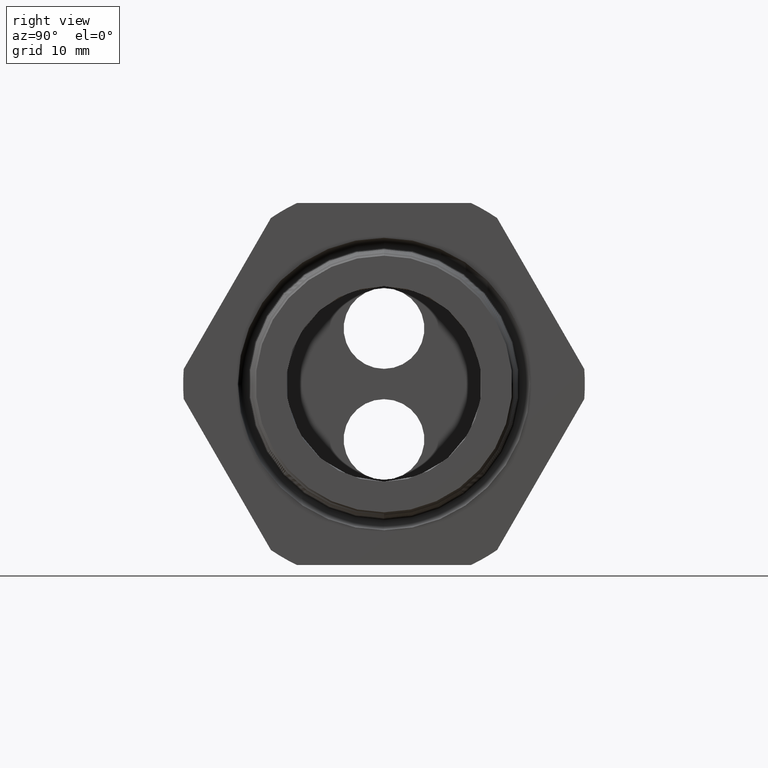
[diagram: clean part render]
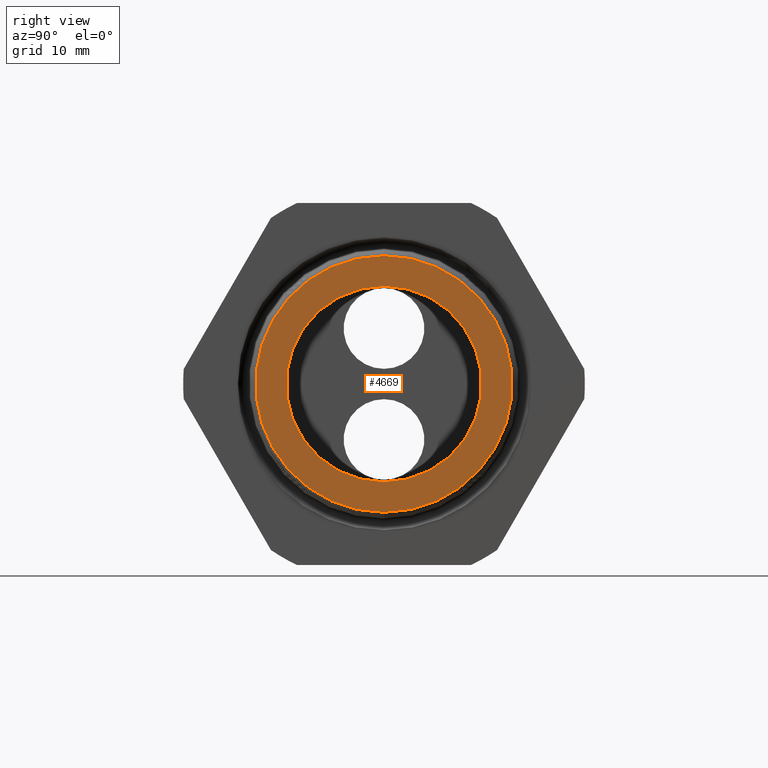
[diagram: same view with one face highlighted and labeled with its STEP entity id]
A machine part, right view. The second image highlights one B-rep face of the part: STEP entity #4669.
In plain terms, the highlighted planar face has unit normal (1, 0, 0).
Its self-contained STEP definition (entity closure, byte-faithful):
#1573 = DIRECTION ( 'NONE',  ( 0.0000000000000000000, 0.0000000000000000000, -1.000000000000000000 ) ) ;
#1574 = DIRECTION ( 'NONE',  ( 1.000000000000000000, 0.0000000000000000000, 0.0000000000000000000 ) ) ;
#1575 = CARTESIAN_POINT ( 'NONE',  ( 0.2400000000000001000, 0.0000000000000000000, 0.0000000000000000000 ) ) ;
#1576 = AXIS2_PLACEMENT_3D ( 'NONE', #1575, #1574, #1573 ) ;
#1577 = CIRCLE ( 'NONE', #1576, 0.4609698799149832800 ) ;
#1591 = DIRECTION ( 'NONE',  ( 0.0000000000000000000, 0.0000000000000000000, -1.000000000000000000 ) ) ;
#1592 = DIRECTION ( 'NONE',  ( 1.000000000000000000, 0.0000000000000000000, 0.0000000000000000000 ) ) ;
#1593 = CARTESIAN_POINT ( 'NONE',  ( 0.2400000000000001000, 0.0000000000000000000, 0.0000000000000000000 ) ) ;
#1594 = AXIS2_PLACEMENT_3D ( 'NONE', #1593, #1592, #1591 ) ;
#1595 = CIRCLE ( 'NONE', #1594, 0.3513380394677680400 ) ;
#1600 = DIRECTION ( 'NONE',  ( 0.0000000000000000000, 0.0000000000000000000, -1.000000000000000000 ) ) ;
#1601 = DIRECTION ( 'NONE',  ( 1.000000000000000000, 0.0000000000000000000, 0.0000000000000000000 ) ) ;
#1602 = CARTESIAN_POINT ( 'NONE',  ( 0.2400000000000001000, 0.3513380394677680400, 0.0000000000000000000 ) ) ;
#1603 = AXIS2_PLACEMENT_3D ( 'NONE', #1602, #1601, #1600 ) ;
#1604 = FACE_BOUND ( 'NONE', #4644, .T. ) ;
#1605 = FACE_OUTER_BOUND ( 'NONE', #4648, .T. ) ;
#1612 = PLANE ( 'NONE',  #1603 ) ;
#1904 = CARTESIAN_POINT ( 'NONE',  ( 0.2400000000000001000, 0.0000000000000000000, 0.3513380394677680400 ) ) ;
#1905 = CARTESIAN_POINT ( 'NONE',  ( 0.2400000000000001000, 4.325073095751094600E-017, -0.3513380394677680400 ) ) ;
#2210 = CARTESIAN_POINT ( 'NONE',  ( 0.2400000000000001000, 0.0000000000000000000, 0.4609698799149832800 ) ) ;
#3886 = DIRECTION ( 'NONE',  ( 0.0000000000000000000, 0.0000000000000000000, -1.000000000000000000 ) ) ;
#3887 = DIRECTION ( 'NONE',  ( 1.000000000000000000, 0.0000000000000000000, 0.0000000000000000000 ) ) ;
#3888 = CARTESIAN_POINT ( 'NONE',  ( 0.2400000000000001000, 0.0000000000000000000, 0.0000000000000000000 ) ) ;
#3889 = AXIS2_PLACEMENT_3D ( 'NONE', #3888, #3887, #3886 ) ;
#3890 = CIRCLE ( 'NONE', #3889, 0.4609698799149832800 ) ;
#3891 = CARTESIAN_POINT ( 'NONE',  ( 0.2400000000000001000, 5.677119249336221900E-017, -0.4609698799149832800 ) ) ;
#3902 = DIRECTION ( 'NONE',  ( 0.0000000000000000000, 0.0000000000000000000, -1.000000000000000000 ) ) ;
#3903 = DIRECTION ( 'NONE',  ( 1.000000000000000000, 0.0000000000000000000, 0.0000000000000000000 ) ) ;
#3904 = CARTESIAN_POINT ( 'NONE',  ( 0.2400000000000001000, 0.0000000000000000000, 0.0000000000000000000 ) ) ;
#3905 = AXIS2_PLACEMENT_3D ( 'NONE', #3904, #3903, #3902 ) ;
#3906 = CIRCLE ( 'NONE', #3905, 0.3513380394677680400 ) ;
#4644 = EDGE_LOOP ( 'NONE', ( #4699, #4700 ) ) ;
#4647 = ORIENTED_EDGE ( 'NONE', *, *, #5951, .T. ) ;
#4648 = EDGE_LOOP ( 'NONE', ( #4649, #4647 ) ) ;
#4649 = ORIENTED_EDGE ( 'NONE', *, *, #4650, .T. ) ;
#4650 = EDGE_CURVE ( 'NONE', #4990, #5949, #1577, .T. ) ;
#4669 = ADVANCED_FACE ( 'NONE', ( #1605, #1604 ), #1612, .T. ) ;
#4673 = EDGE_CURVE ( 'NONE', #4809, #4811, #1595, .T. ) ;
#4699 = ORIENTED_EDGE ( 'NONE', *, *, #5972, .F. ) ;
#4700 = ORIENTED_EDGE ( 'NONE', *, *, #4673, .F. ) ;
#4809 = VERTEX_POINT ( 'NONE', #1905 ) ;
#4811 = VERTEX_POINT ( 'NONE', #1904 ) ;
#4990 = VERTEX_POINT ( 'NONE', #2210 ) ;
#5949 = VERTEX_POINT ( 'NONE', #3891 ) ;
#5951 = EDGE_CURVE ( 'NONE', #5949, #4990, #3890, .T. ) ;
#5972 = EDGE_CURVE ( 'NONE', #4811, #4809, #3906, .T. ) ;